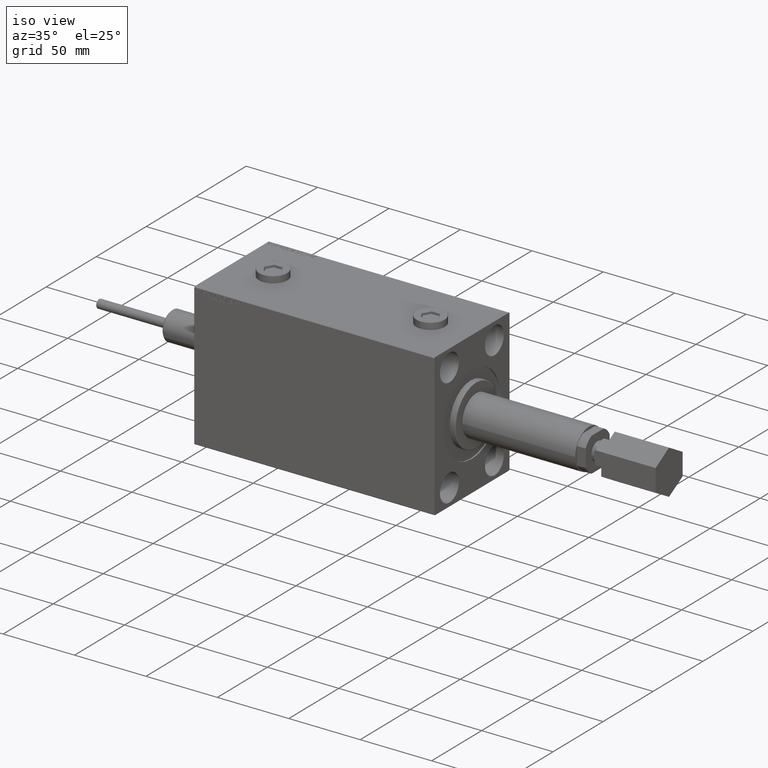
[diagram: clean part render]
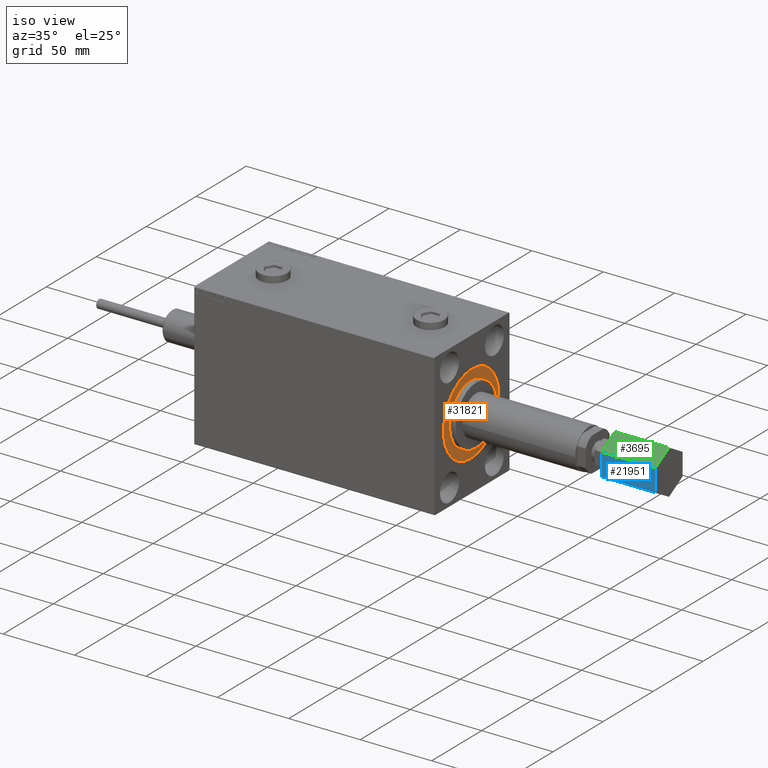
[diagram: same view with three faces highlighted in distinct colors, each labeled with its STEP entity id]
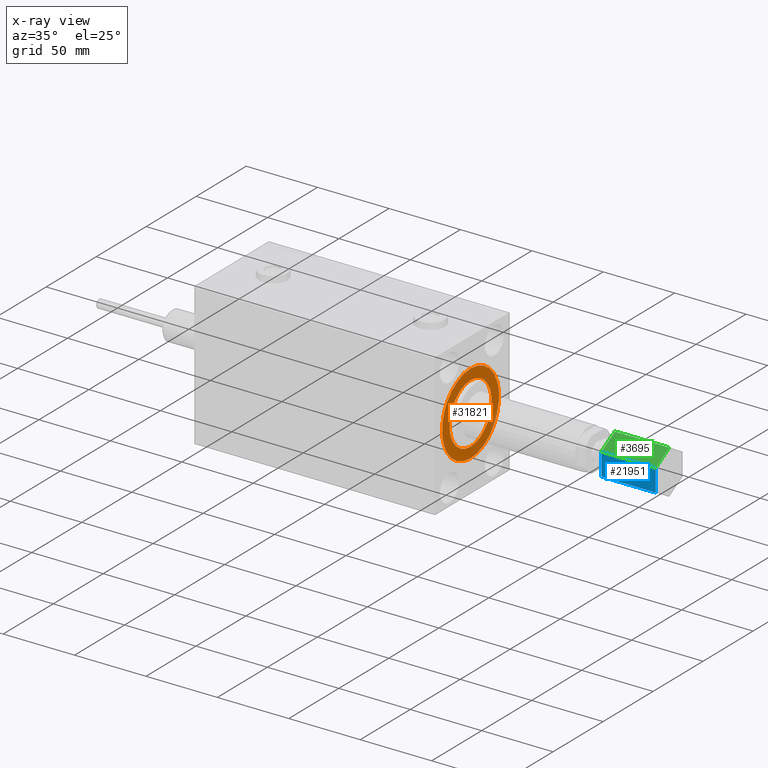
[diagram: x-ray of the same camera — body ghosted, the three highlighted faces saturated]
A machine part, iso view with three faces highlighted in distinct colors.
The next image is the same camera in x-ray (body ghosted, the three faces saturated) — at least one of them is partly hidden behind the body in this view.
Their STEP definitions:

[orange] entity #31821 — the highlighted planar face has unit normal (1, 0, 0).
#309 = EDGE_CURVE ( 'NONE', #7367, #579, #46716, .T. ) ;
#579 = VERTEX_POINT ( 'NONE', #20826 ) ;
#7367 = VERTEX_POINT ( 'NONE', #9000 ) ;
#7394 = EDGE_CURVE ( 'NONE', #30215, #40888, #35084, .T. ) ;
#8125 = EDGE_CURVE ( 'NONE', #40888, #30215, #36648, .T. ) ;
#9000 = CARTESIAN_POINT ( 'NONE',  ( 167.1999999999999886, 2.571758278209441661E-15, -21.00000000000000000 ) ) ;
#9261 = AXIS2_PLACEMENT_3D ( 'NONE', #11893, #22670, #18507 ) ;
#10513 = ORIENTED_EDGE ( 'NONE', *, *, #38700, .F. ) ;
#11796 = CARTESIAN_POINT ( 'NONE',  ( 167.1999999999999886, 0.000000000000000000, 0.000000000000000000 ) ) ;
#11893 = CARTESIAN_POINT ( 'NONE',  ( 167.1999999999999886, 0.000000000000000000, 0.000000000000000000 ) ) ;
#12198 = CARTESIAN_POINT ( 'NONE',  ( 167.1999999999999886, 0.000000000000000000, 0.000000000000000000 ) ) ;
#12754 = DIRECTION ( 'NONE',  ( 1.000000000000000000, 0.000000000000000000, 0.000000000000000000 ) ) ;
#17859 = DIRECTION ( 'NONE',  ( 0.000000000000000000, 0.000000000000000000, -1.000000000000000000 ) ) ;
#18507 = DIRECTION ( 'NONE',  ( 0.000000000000000000, 0.000000000000000000, -1.000000000000000000 ) ) ;
#18587 = DIRECTION ( 'NONE',  ( 1.000000000000000000, 0.000000000000000000, 0.000000000000000000 ) ) ;
#18831 = FACE_OUTER_BOUND ( 'NONE', #38257, .T. ) ;
#20826 = CARTESIAN_POINT ( 'NONE',  ( 167.1999999999999886, 0.000000000000000000, 21.00000000000000000 ) ) ;
#21774 = PLANE ( 'NONE',  #45833 ) ;
#21777 = AXIS2_PLACEMENT_3D ( 'NONE', #24491, #12754, #28184 ) ;
#22670 = DIRECTION ( 'NONE',  ( 1.000000000000000000, 0.000000000000000000, 0.000000000000000000 ) ) ;
#24491 = CARTESIAN_POINT ( 'NONE',  ( 167.1999999999999886, 0.000000000000000000, 0.000000000000000000 ) ) ;
#27145 = DIRECTION ( 'NONE',  ( 0.000000000000000000, 0.000000000000000000, -1.000000000000000000 ) ) ;
#27631 = DIRECTION ( 'NONE',  ( 1.000000000000000000, 0.000000000000000000, 0.000000000000000000 ) ) ;
#28184 = DIRECTION ( 'NONE',  ( 0.000000000000000000, 0.000000000000000000, -1.000000000000000000 ) ) ;
#30215 = VERTEX_POINT ( 'NONE', #39128 ) ;
#31821 = ADVANCED_FACE ( 'NONE', ( #37207, #18831 ), #21774, .T. ) ;
#32235 = CARTESIAN_POINT ( 'NONE',  ( 167.1999999999999886, 3.490243377569956456E-15, 28.50000000000000000 ) ) ;
#32638 = AXIS2_PLACEMENT_3D ( 'NONE', #11796, #44643, #33862 ) ;
#33862 = DIRECTION ( 'NONE',  ( 0.000000000000000000, 0.000000000000000000, -1.000000000000000000 ) ) ;
#35084 = CIRCLE ( 'NONE', #43694, 28.50000000000000000 ) ;
#36648 = CIRCLE ( 'NONE', #21777, 28.50000000000000000 ) ;
#36723 = CARTESIAN_POINT ( 'NONE',  ( 167.1999999999999886, 0.000000000000000000, 0.000000000000000000 ) ) ;
#37207 = FACE_BOUND ( 'NONE', #48002, .T. ) ;
#38257 = EDGE_LOOP ( 'NONE', ( #42537, #40343 ) ) ;
#38700 = EDGE_CURVE ( 'NONE', #579, #7367, #42117, .T. ) ;
#39128 = CARTESIAN_POINT ( 'NONE',  ( 167.1999999999999886, 0.000000000000000000, -28.50000000000000000 ) ) ;
#40343 = ORIENTED_EDGE ( 'NONE', *, *, #8125, .T. ) ;
#40888 = VERTEX_POINT ( 'NONE', #32235 ) ;
#41473 = ORIENTED_EDGE ( 'NONE', *, *, #309, .F. ) ;
#42117 = CIRCLE ( 'NONE', #9261, 21.00000000000000000 ) ;
#42537 = ORIENTED_EDGE ( 'NONE', *, *, #7394, .T. ) ;
#43694 = AXIS2_PLACEMENT_3D ( 'NONE', #12198, #27631, #27145 ) ;
#44643 = DIRECTION ( 'NONE',  ( 1.000000000000000000, 0.000000000000000000, 0.000000000000000000 ) ) ;
#45833 = AXIS2_PLACEMENT_3D ( 'NONE', #36723, #18587, #17859 ) ;
#46716 = CIRCLE ( 'NONE', #32638, 21.00000000000000000 ) ;
#48002 = EDGE_LOOP ( 'NONE', ( #10513, #41473 ) ) ;

[blue] entity #21951 — the highlighted planar face has unit normal (0, 1, 0).
#504 = CARTESIAN_POINT ( 'NONE',  ( 139.0000000000000000, 7.794228634059952476, -13.49999999999999822 ) ) ;
#821 = EDGE_LOOP ( 'NONE', ( #28295, #43399, #10156, #18106 ) ) ;
#3134 = CARTESIAN_POINT ( 'NONE',  ( 139.0000000000000000, -7.794228634059953364, -13.50000000000000178 ) ) ;
#3414 = VERTEX_POINT ( 'NONE', #29319 ) ;
#3757 = CARTESIAN_POINT ( 'NONE',  ( 139.0000000000000000, -7.794228634059953364, -13.50000000000000178 ) ) ;
#4175 = LINE ( 'NONE', #504, #31046 ) ;
#6300 = VERTEX_POINT ( 'NONE', #3134 ) ;
#7498 = CARTESIAN_POINT ( 'NONE',  ( 139.0000000000000000, -7.794228634059953364, -13.50000000000000178 ) ) ;
#8317 = VECTOR ( 'NONE', #37327, 1000.000000000000000 ) ;
#10156 = ORIENTED_EDGE ( 'NONE', *, *, #31154, .F. ) ;
#11526 = CARTESIAN_POINT ( 'NONE',  ( 101.0000000000000142, -7.794228634059953364, -13.50000000000000178 ) ) ;
#12248 = LINE ( 'NONE', #11526, #31692 ) ;
#14608 = EDGE_CURVE ( 'NONE', #6300, #47855, #18525, .T. ) ;
#15501 = PLANE ( 'NONE',  #36230 ) ;
#17236 = CARTESIAN_POINT ( 'NONE',  ( 101.0000000000000142, -7.794228634059953364, -13.50000000000000178 ) ) ;
#18106 = ORIENTED_EDGE ( 'NONE', *, *, #14608, .T. ) ;
#18459 = LINE ( 'NONE', #3757, #8317 ) ;
#18525 = LINE ( 'NONE', #7498, #38446 ) ;
#19662 = FACE_OUTER_BOUND ( 'NONE', #821, .T. ) ;
#21951 = ADVANCED_FACE ( 'NONE', ( #19662 ), #15501, .F. ) ;
#26745 = EDGE_CURVE ( 'NONE', #47855, #3414, #12248, .T. ) ;
#26783 = CARTESIAN_POINT ( 'NONE',  ( 139.0000000000000000, -7.794228634059953364, -13.50000000000000178 ) ) ;
#28295 = ORIENTED_EDGE ( 'NONE', *, *, #26745, .T. ) ;
#29319 = CARTESIAN_POINT ( 'NONE',  ( 101.0000000000000142, 7.794228634059952476, -13.49999999999999822 ) ) ;
#31046 = VECTOR ( 'NONE', #34070, 1000.000000000000000 ) ;
#31154 = EDGE_CURVE ( 'NONE', #6300, #38362, #18459, .T. ) ;
#31169 = DIRECTION ( 'NONE',  ( 0.000000000000000000, -2.225651257388383239E-16, 1.000000000000000000 ) ) ;
#31692 = VECTOR ( 'NONE', #45824, 1000.000000000000000 ) ;
#34070 = DIRECTION ( 'NONE',  ( -1.000000000000000000, -0.000000000000000000, -0.000000000000000000 ) ) ;
#35311 = EDGE_CURVE ( 'NONE', #38362, #3414, #4175, .T. ) ;
#36230 = AXIS2_PLACEMENT_3D ( 'NONE', #26783, #31169, #42446 ) ;
#37327 = DIRECTION ( 'NONE',  ( 0.000000000000000000, 1.000000000000000000, 2.225651257388383239E-16 ) ) ;
#38362 = VERTEX_POINT ( 'NONE', #39483 ) ;
#38446 = VECTOR ( 'NONE', #48194, 1000.000000000000000 ) ;
#39483 = CARTESIAN_POINT ( 'NONE',  ( 139.0000000000000000, 7.794228634059952476, -13.49999999999999822 ) ) ;
#42446 = DIRECTION ( 'NONE',  ( 0.000000000000000000, -1.000000000000000000, -2.225651257388383239E-16 ) ) ;
#43399 = ORIENTED_EDGE ( 'NONE', *, *, #35311, .F. ) ;
#45824 = DIRECTION ( 'NONE',  ( 0.000000000000000000, 1.000000000000000000, 2.225651257388383239E-16 ) ) ;
#47855 = VERTEX_POINT ( 'NONE', #17236 ) ;
#48194 = DIRECTION ( 'NONE',  ( -1.000000000000000000, -0.000000000000000000, -0.000000000000000000 ) ) ;

[green] entity #3695 — the highlighted planar face has unit normal (0, 0.5, -0.866).
#2842 = CARTESIAN_POINT ( 'NONE',  ( 139.0000000000000000, -15.58845726811989607, -5.983477626642369342E-15 ) ) ;
#3134 = CARTESIAN_POINT ( 'NONE',  ( 139.0000000000000000, -7.794228634059953364, -13.50000000000000178 ) ) ;
#3203 = ORIENTED_EDGE ( 'NONE', *, *, #14608, .F. ) ;
#3695 = ADVANCED_FACE ( 'NONE', ( #24920 ), #29089, .F. ) ;
#4030 = DIRECTION ( 'NONE',  ( 0.000000000000000000, 0.4999999999999998335, -0.8660254037844387076 ) ) ;
#4221 = EDGE_CURVE ( 'NONE', #37520, #47855, #41030, .T. ) ;
#6300 = VERTEX_POINT ( 'NONE', #3134 ) ;
#7498 = CARTESIAN_POINT ( 'NONE',  ( 139.0000000000000000, -7.794228634059953364, -13.50000000000000178 ) ) ;
#8141 = DIRECTION ( 'NONE',  ( 0.000000000000000000, 0.4999999999999998335, -0.8660254037844387076 ) ) ;
#9436 = VECTOR ( 'NONE', #43383, 1000.000000000000000 ) ;
#11932 = EDGE_CURVE ( 'NONE', #30840, #37520, #47536, .T. ) ;
#13657 = DIRECTION ( 'NONE',  ( -0.000000000000000000, 0.8660254037844387076, 0.4999999999999998335 ) ) ;
#14608 = EDGE_CURVE ( 'NONE', #6300, #47855, #18525, .T. ) ;
#16280 = VECTOR ( 'NONE', #8141, 1000.000000000000114 ) ;
#17236 = CARTESIAN_POINT ( 'NONE',  ( 101.0000000000000142, -7.794228634059953364, -13.50000000000000178 ) ) ;
#17594 = CARTESIAN_POINT ( 'NONE',  ( 101.0000000000000142, -15.58845726811989607, -5.983477626642369342E-15 ) ) ;
#17977 = ORIENTED_EDGE ( 'NONE', *, *, #11932, .T. ) ;
#18525 = LINE ( 'NONE', #7498, #38446 ) ;
#23084 = CARTESIAN_POINT ( 'NONE',  ( 139.0000000000000000, -15.58845726811989607, -5.983477626642369342E-15 ) ) ;
#23799 = LINE ( 'NONE', #23084, #16280 ) ;
#24920 = FACE_OUTER_BOUND ( 'NONE', #31725, .T. ) ;
#29089 = PLANE ( 'NONE',  #37316 ) ;
#29440 = ORIENTED_EDGE ( 'NONE', *, *, #38292, .F. ) ;
#29761 = CARTESIAN_POINT ( 'NONE',  ( 101.0000000000000142, -15.58845726811989607, -5.983477626642369342E-15 ) ) ;
#30840 = VERTEX_POINT ( 'NONE', #2842 ) ;
#31725 = EDGE_LOOP ( 'NONE', ( #44971, #3203, #29440, #17977 ) ) ;
#32289 = DIRECTION ( 'NONE',  ( 0.000000000000000000, -0.4999999999999998335, 0.8660254037844387076 ) ) ;
#33404 = VECTOR ( 'NONE', #4030, 1000.000000000000114 ) ;
#37316 = AXIS2_PLACEMENT_3D ( 'NONE', #43801, #13657, #32289 ) ;
#37520 = VERTEX_POINT ( 'NONE', #17594 ) ;
#38292 = EDGE_CURVE ( 'NONE', #30840, #6300, #23799, .T. ) ;
#38446 = VECTOR ( 'NONE', #48194, 1000.000000000000000 ) ;
#41030 = LINE ( 'NONE', #29761, #33404 ) ;
#43383 = DIRECTION ( 'NONE',  ( -1.000000000000000000, -0.000000000000000000, -0.000000000000000000 ) ) ;
#43801 = CARTESIAN_POINT ( 'NONE',  ( 139.0000000000000000, -15.58845726811989607, -5.983477626642369342E-15 ) ) ;
#43865 = CARTESIAN_POINT ( 'NONE',  ( 139.0000000000000000, -15.58845726811989607, -5.983477626642369342E-15 ) ) ;
#44971 = ORIENTED_EDGE ( 'NONE', *, *, #4221, .T. ) ;
#47536 = LINE ( 'NONE', #43865, #9436 ) ;
#47855 = VERTEX_POINT ( 'NONE', #17236 ) ;
#48194 = DIRECTION ( 'NONE',  ( -1.000000000000000000, -0.000000000000000000, -0.000000000000000000 ) ) ;